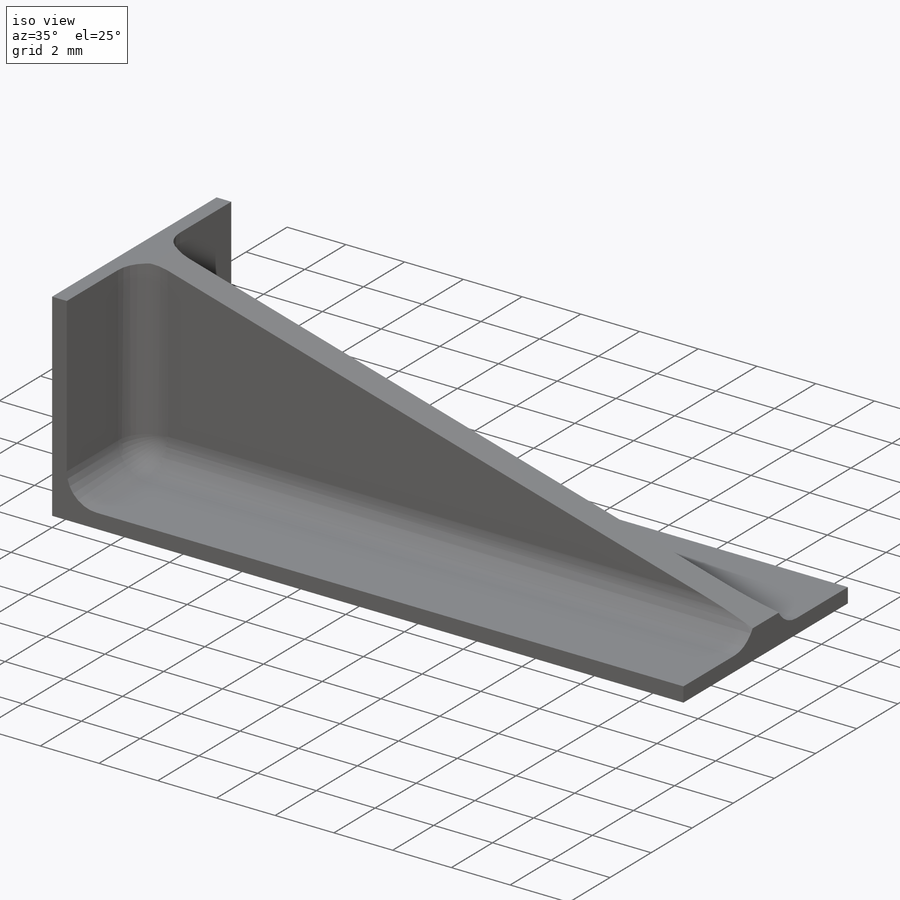
[diagram: iso view]
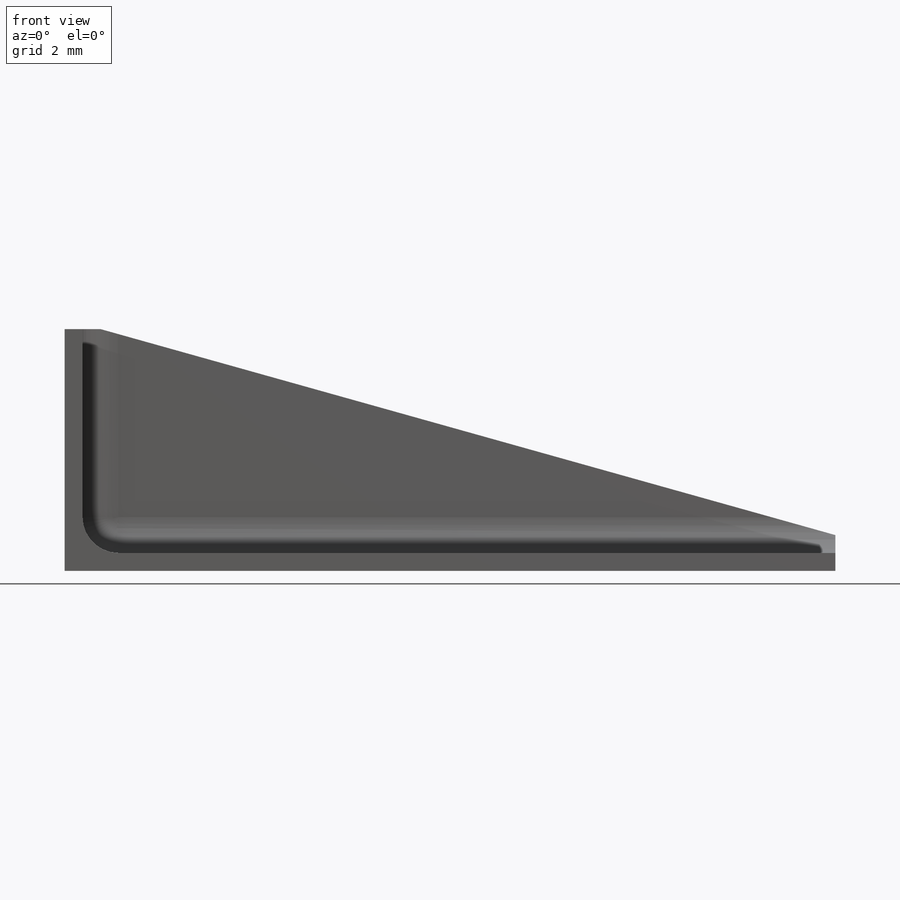
[diagram: front view]
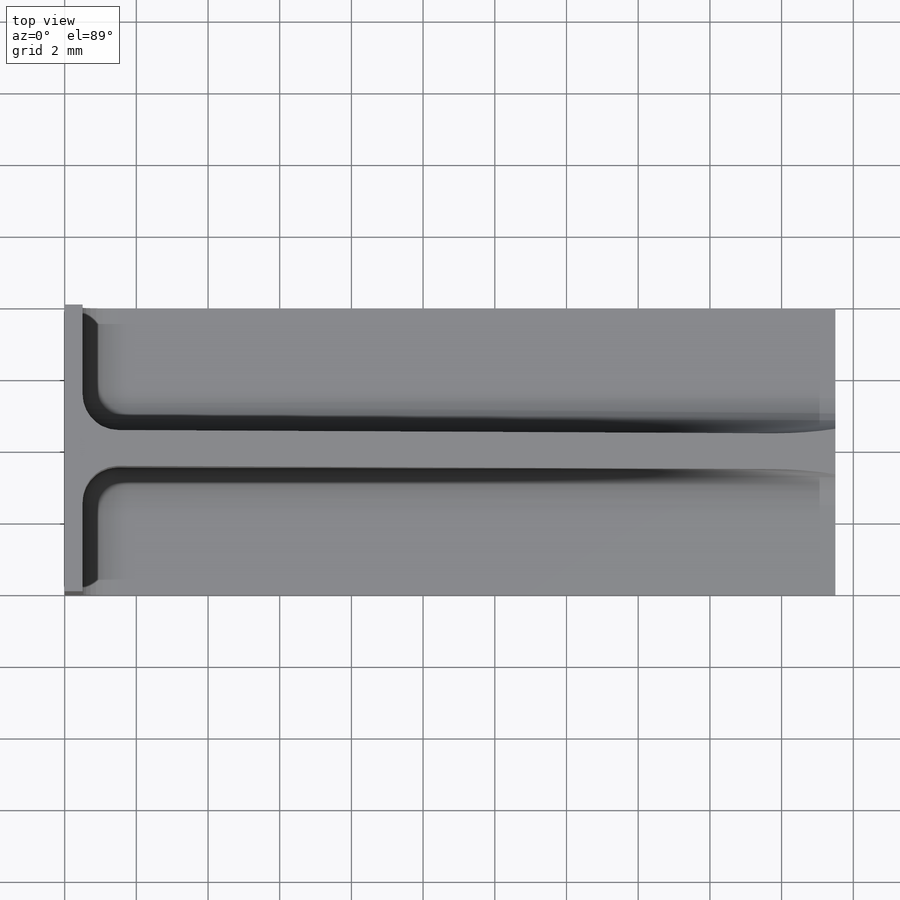
[diagram: top view]
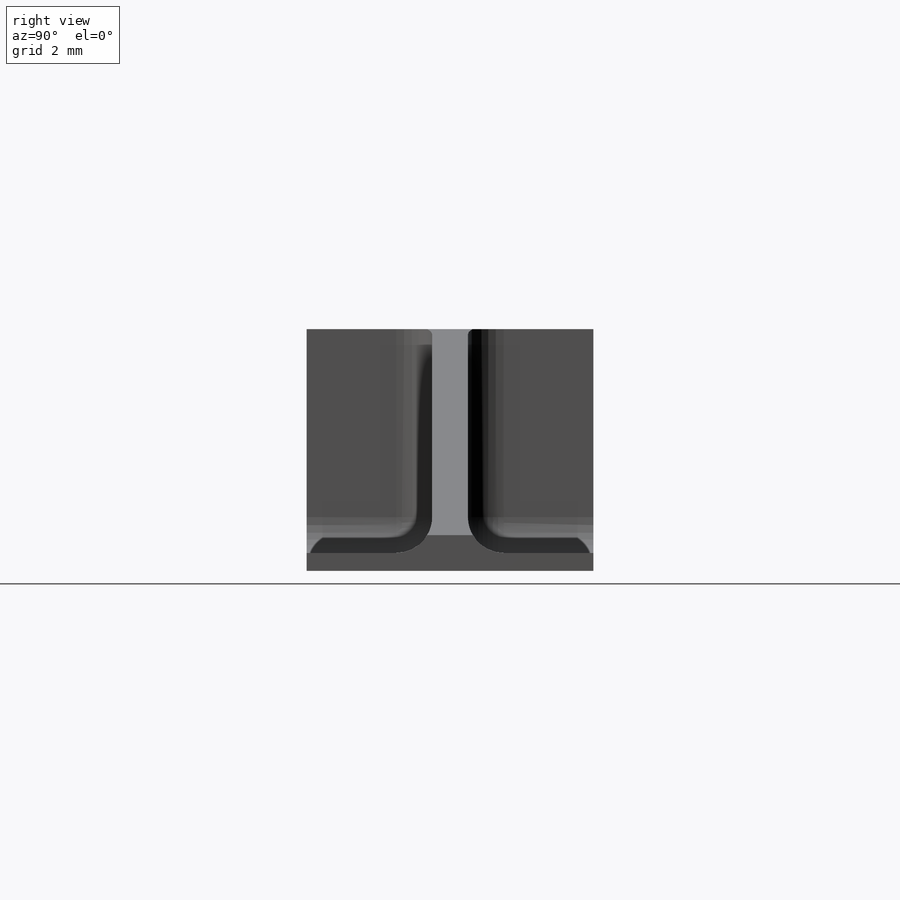
[diagram: right view]
SOLIDWORKS PART (.sldprt)
format: sldprt  version: not decoded by parser v0  size: 259,072 bytes
history: native  units: mm
features: plane x3, sketch x2, extrude x2, material x1, fillet x1 + 2 further entries (+13 scaffold rows collapsed)
feature tree (24):
  scaffold x13  (default folders/planes/origin — collapsed)
  material  "Material <not specified>"
  plane  "Plane1"
  plane  "Plane2"
  plane  "Plane3"
  "Axis2"
  "Axis3"
  sketch  "Sketch1"  dims[c1.D1=9.0mm c1.D2=~13.828441mm c1.D3=~6.746203mm c1.D4=1.0mm c1.D5=1.0mm c1.D6=0.5mm c2.D1=21.5mm c2.D2=1.0mm]
  extrude  "Extrude1"  Depth=1mm
  sketch  "Sketch2"  dims[D1=0.5mm]
  extrude  "Extrude2"  Depth=8mm
  fillet  "Fillet1"  Radius=1mm
decode coverage: 5 of 5 modeling features carry decoded parameters; 2 rows unclassified (native names shown)
note: ~ marks probable driven/reference dimensions
note: suppression state not decoded; provenance and decode notes live in map.json
